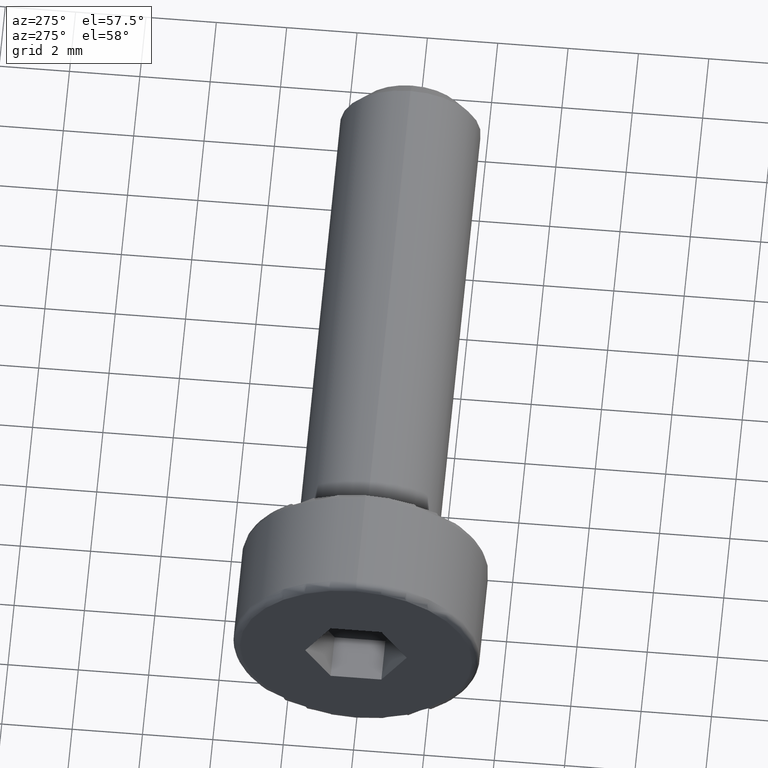
[diagram: clean part render]
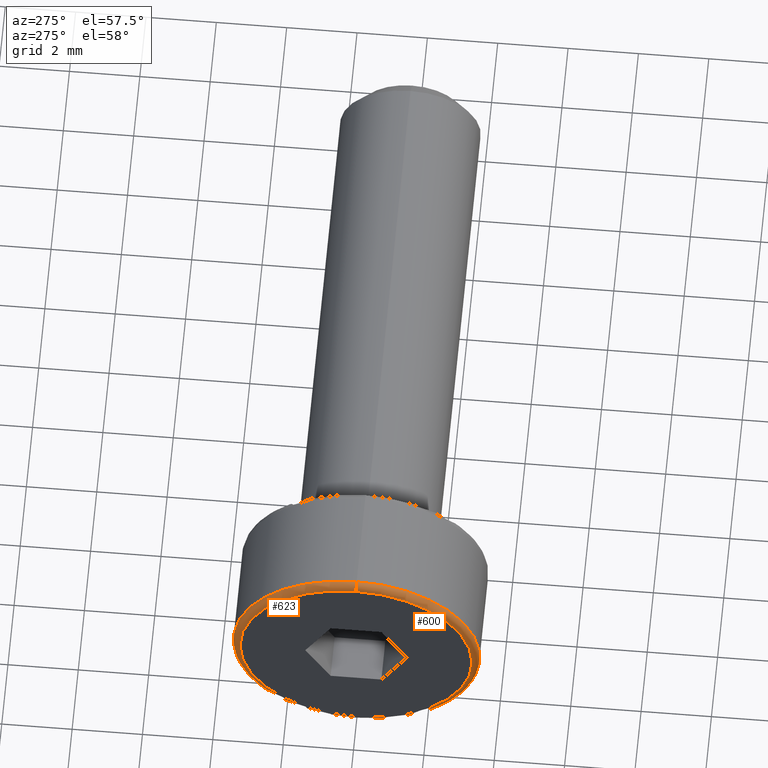
[diagram: same view with one multi-face feature highlighted, each face labeled with its STEP entity id]
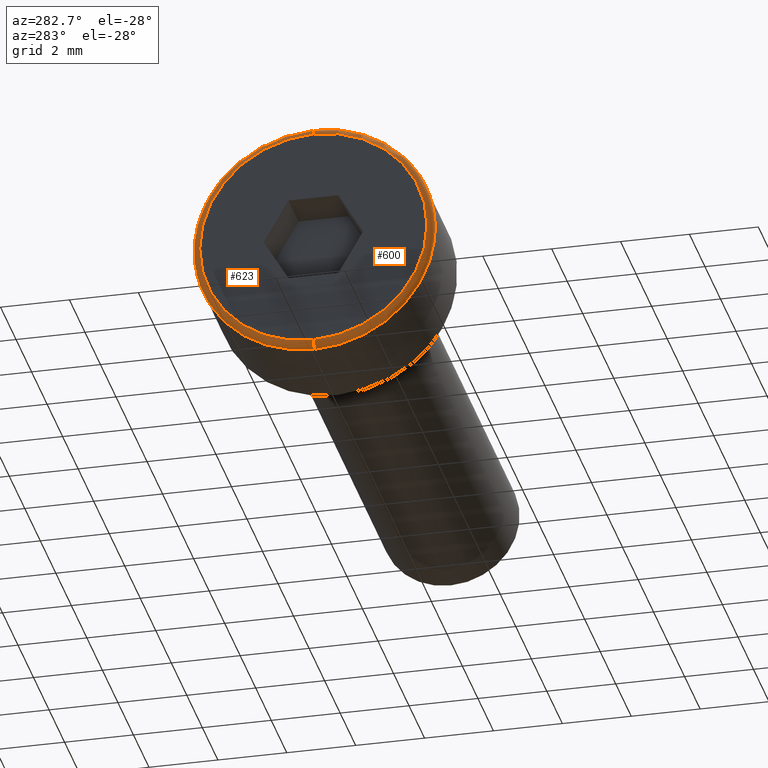
[diagram: same view with one multi-face feature highlighted, each face labeled with its STEP entity id]
A machine part, auxiliary view. The highlighted faces form ONE feature: a constant-radius fillet chain: 2 tangent blend faces with common blend radius 0.2 mm. The faces share edges in the B-rep.
A second angle (auxiliary view) of the same feature is appended — it is thin or edge-on in the first view.
Their STEP definitions:
[1] entity #600 (Torus):
#7 = DIRECTION ( 'NONE',  ( 0.0000000000000000000, 0.0000000000000000000, -1.000000000000000000 ) ) ;
#27 = CARTESIAN_POINT ( 'NONE',  ( -3.000000000000000000, 0.0000000000000000000, 0.0000000000000000000 ) ) ;
#42 = DIRECTION ( 'NONE',  ( 1.000000000000000000, 0.0000000000000000000, 0.0000000000000000000 ) ) ;
#60 = CARTESIAN_POINT ( 'NONE',  ( -3.000000000000000000, 4.286263797015737100E-016, 3.500000000000000400 ) ) ;
#70 = VERTEX_POINT ( 'NONE', #565 ) ;
#76 = AXIS2_PLACEMENT_3D ( 'NONE', #209, #266, #650 ) ;
#78 = CARTESIAN_POINT ( 'NONE',  ( -3.000000000000000000, 0.0000000000000000000, -3.300000000000000300 ) ) ;
#80 = AXIS2_PLACEMENT_3D ( 'NONE', #27, #42, #213 ) ;
#147 = EDGE_CURVE ( 'NONE', #516, #315, #296, .T. ) ;
#181 = VERTEX_POINT ( 'NONE', #60 ) ;
#191 = EDGE_LOOP ( 'NONE', ( #466, #687, #533, #551 ) ) ;
#198 = DIRECTION ( 'NONE',  ( 0.0000000000000000000, 0.0000000000000000000, -1.000000000000000000 ) ) ;
#208 = DIRECTION ( 'NONE',  ( 0.0000000000000000000, -1.000000000000000000, 0.0000000000000000000 ) ) ;
#209 = CARTESIAN_POINT ( 'NONE',  ( -3.000000000000000000, 4.041334437186266000E-016, 3.300000000000000300 ) ) ;
#213 = DIRECTION ( 'NONE',  ( 0.0000000000000000000, 0.0000000000000000000, -1.000000000000000000 ) ) ;
#234 = DIRECTION ( 'NONE',  ( -1.000000000000000000, -0.0000000000000000000, -0.0000000000000000000 ) ) ;
#260 = DIRECTION ( 'NONE',  ( 1.000000000000000000, 0.0000000000000000000, 0.0000000000000000000 ) ) ;
#266 = DIRECTION ( 'NONE',  ( 0.0000000000000000000, 1.000000000000000000, -1.224646799147353200E-016 ) ) ;
#296 = CIRCLE ( 'NONE', #649, 3.300000000000000300 ) ;
#315 = VERTEX_POINT ( 'NONE', #776 ) ;
#318 = EDGE_CURVE ( 'NONE', #181, #70, #323, .T. ) ;
#323 = CIRCLE ( 'NONE', #80, 3.500000000000000400 ) ;
#343 = DIRECTION ( 'NONE',  ( 0.0000000000000000000, 0.0000000000000000000, -1.000000000000000000 ) ) ;
#428 = AXIS2_PLACEMENT_3D ( 'NONE', #78, #208, #198 ) ;
#450 = FACE_OUTER_BOUND ( 'NONE', #191, .T. ) ;
#466 = ORIENTED_EDGE ( 'NONE', *, *, #636, .F. ) ;
#516 = VERTEX_POINT ( 'NONE', #716 ) ;
#533 = ORIENTED_EDGE ( 'NONE', *, *, #582, .T. ) ;
#551 = ORIENTED_EDGE ( 'NONE', *, *, #318, .F. ) ;
#565 = CARTESIAN_POINT ( 'NONE',  ( -3.000000000000000000, 0.0000000000000000000, -3.500000000000000400 ) ) ;
#582 = EDGE_CURVE ( 'NONE', #516, #70, #809, .T. ) ;
#589 = CIRCLE ( 'NONE', #76, 0.2000000000000000900 ) ;
#600 = ADVANCED_FACE ( 'NONE', ( #450 ), #612, .T. ) ;
#612 = TOROIDAL_SURFACE ( 'NONE', #644, 3.300000000000000300, 0.2000000000000000100 ) ;
#636 = EDGE_CURVE ( 'NONE', #315, #181, #589, .T. ) ;
#644 = AXIS2_PLACEMENT_3D ( 'NONE', #730, #260, #7 ) ;
#649 = AXIS2_PLACEMENT_3D ( 'NONE', #782, #234, #343 ) ;
#650 = DIRECTION ( 'NONE',  ( 0.0000000000000000000, 1.224646799147353200E-016, 1.000000000000000000 ) ) ;
#687 = ORIENTED_EDGE ( 'NONE', *, *, #147, .F. ) ;
#716 = CARTESIAN_POINT ( 'NONE',  ( -3.200000000000000200, 0.0000000000000000000, -3.300000000000000300 ) ) ;
#730 = CARTESIAN_POINT ( 'NONE',  ( -3.000000000000000000, 0.0000000000000000000, 0.0000000000000000000 ) ) ;
#776 = CARTESIAN_POINT ( 'NONE',  ( -3.200000000000000200, 4.163799117101001500E-016, 3.300000000000000300 ) ) ;
#782 = CARTESIAN_POINT ( 'NONE',  ( -3.200000000000000200, 0.0000000000000000000, 0.0000000000000000000 ) ) ;
#809 = CIRCLE ( 'NONE', #428, 0.2000000000000000900 ) ;
[2] entity #623 (Torus):
#21 = DIRECTION ( 'NONE',  ( 0.0000000000000000000, 0.0000000000000000000, -1.000000000000000000 ) ) ;
#28 = DIRECTION ( 'NONE',  ( 0.0000000000000000000, 0.0000000000000000000, -1.000000000000000000 ) ) ;
#60 = CARTESIAN_POINT ( 'NONE',  ( -3.000000000000000000, 4.286263797015737100E-016, 3.500000000000000400 ) ) ;
#63 = AXIS2_PLACEMENT_3D ( 'NONE', #784, #405, #28 ) ;
#70 = VERTEX_POINT ( 'NONE', #565 ) ;
#72 = ORIENTED_EDGE ( 'NONE', *, *, #582, .F. ) ;
#76 = AXIS2_PLACEMENT_3D ( 'NONE', #209, #266, #650 ) ;
#78 = CARTESIAN_POINT ( 'NONE',  ( -3.000000000000000000, 0.0000000000000000000, -3.300000000000000300 ) ) ;
#84 = CARTESIAN_POINT ( 'NONE',  ( -3.200000000000000200, 0.0000000000000000000, 0.0000000000000000000 ) ) ;
#87 = CARTESIAN_POINT ( 'NONE',  ( -3.000000000000000000, 0.0000000000000000000, 0.0000000000000000000 ) ) ;
#156 = EDGE_CURVE ( 'NONE', #315, #516, #620, .T. ) ;
#167 = ORIENTED_EDGE ( 'NONE', *, *, #156, .F. ) ;
#181 = VERTEX_POINT ( 'NONE', #60 ) ;
#198 = DIRECTION ( 'NONE',  ( 0.0000000000000000000, 0.0000000000000000000, -1.000000000000000000 ) ) ;
#208 = DIRECTION ( 'NONE',  ( 0.0000000000000000000, -1.000000000000000000, 0.0000000000000000000 ) ) ;
#209 = CARTESIAN_POINT ( 'NONE',  ( -3.000000000000000000, 4.041334437186266000E-016, 3.300000000000000300 ) ) ;
#266 = DIRECTION ( 'NONE',  ( 0.0000000000000000000, 1.000000000000000000, -1.224646799147353200E-016 ) ) ;
#315 = VERTEX_POINT ( 'NONE', #776 ) ;
#404 = DIRECTION ( 'NONE',  ( 0.0000000000000000000, 0.0000000000000000000, -1.000000000000000000 ) ) ;
#405 = DIRECTION ( 'NONE',  ( 1.000000000000000000, 0.0000000000000000000, 0.0000000000000000000 ) ) ;
#419 = TOROIDAL_SURFACE ( 'NONE', #764, 3.300000000000000300, 0.2000000000000000100 ) ;
#428 = AXIS2_PLACEMENT_3D ( 'NONE', #78, #208, #198 ) ;
#462 = DIRECTION ( 'NONE',  ( 1.000000000000000000, 0.0000000000000000000, 0.0000000000000000000 ) ) ;
#516 = VERTEX_POINT ( 'NONE', #716 ) ;
#537 = DIRECTION ( 'NONE',  ( -1.000000000000000000, -0.0000000000000000000, -0.0000000000000000000 ) ) ;
#565 = CARTESIAN_POINT ( 'NONE',  ( -3.000000000000000000, 0.0000000000000000000, -3.500000000000000400 ) ) ;
#582 = EDGE_CURVE ( 'NONE', #516, #70, #809, .T. ) ;
#589 = CIRCLE ( 'NONE', #76, 0.2000000000000000900 ) ;
#620 = CIRCLE ( 'NONE', #736, 3.300000000000000300 ) ;
#623 = ADVANCED_FACE ( 'NONE', ( #754 ), #419, .T. ) ;
#636 = EDGE_CURVE ( 'NONE', #315, #181, #589, .T. ) ;
#650 = DIRECTION ( 'NONE',  ( 0.0000000000000000000, 1.224646799147353200E-016, 1.000000000000000000 ) ) ;
#685 = CIRCLE ( 'NONE', #63, 3.500000000000000400 ) ;
#707 = EDGE_CURVE ( 'NONE', #70, #181, #685, .T. ) ;
#716 = CARTESIAN_POINT ( 'NONE',  ( -3.200000000000000200, 0.0000000000000000000, -3.300000000000000300 ) ) ;
#736 = AXIS2_PLACEMENT_3D ( 'NONE', #84, #537, #404 ) ;
#754 = FACE_OUTER_BOUND ( 'NONE', #794, .T. ) ;
#764 = AXIS2_PLACEMENT_3D ( 'NONE', #87, #462, #21 ) ;
#776 = CARTESIAN_POINT ( 'NONE',  ( -3.200000000000000200, 4.163799117101001500E-016, 3.300000000000000300 ) ) ;
#784 = CARTESIAN_POINT ( 'NONE',  ( -3.000000000000000000, 0.0000000000000000000, 0.0000000000000000000 ) ) ;
#786 = ORIENTED_EDGE ( 'NONE', *, *, #707, .F. ) ;
#794 = EDGE_LOOP ( 'NONE', ( #167, #805, #786, #72 ) ) ;
#805 = ORIENTED_EDGE ( 'NONE', *, *, #636, .T. ) ;
#809 = CIRCLE ( 'NONE', #428, 0.2000000000000000900 ) ;